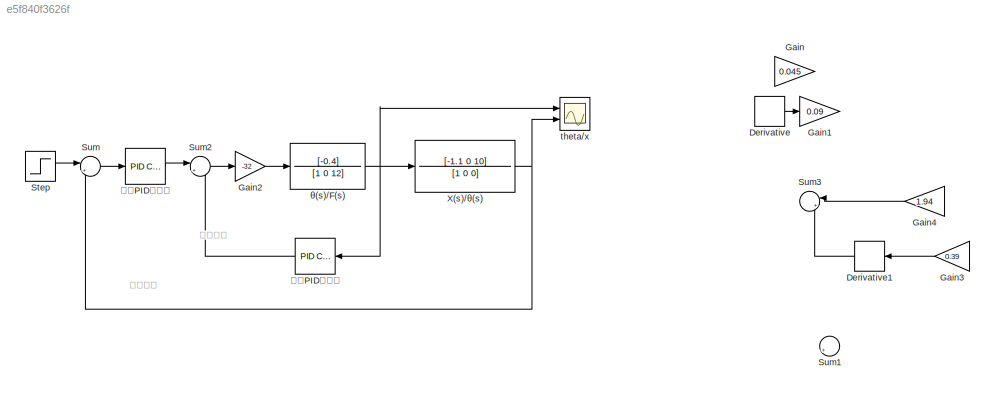
MODEL slx_e5f840f3626f
KIND model
CONFIG AbsTol = auto
CONFIG EnableMultiTasking = off
CONFIG FixedStep = auto
CONFIG MaxStep = auto
CONFIG MinStep = auto
CONFIG RelTol = 1e-3
CONFIG SampleTimeConstraint = Unconstrained
CONFIG SolverName = VariableStepAuto
CONFIG StartTime = 0.0
CONFIG StopTime = 100
BLOCK [Derivative] Derivative
  Commented = on
BLOCK [Derivative] Derivative1
  Commented = on
BLOCK [Gain] Gain
  Commented = on
  Gain = 0.045
BLOCK [Gain] Gain1
  Commented = on
  Gain = 0.09
BLOCK [Gain] Gain2
  Gain = -32
BLOCK [Gain] Gain3
  Commented = on
  Gain = 0.39
BLOCK [Gain] Gain4
  Commented = on
  Gain = 1.94
BLOCK [Step] Step
  SampleTime = 0
BLOCK [Sum] Sum
  Inputs = |+-
  Ports = [2, 1]
BLOCK [Sum] Sum1
  Commented = on
  Inputs = |++
  Ports = [2, 1]
BLOCK [Sum] Sum2
  Inputs = |+-
  Ports = [2, 1]
BLOCK [Sum] Sum3
  Commented = on
  Inputs = |++
  NameLocation = top
  Ports = [2, 1]
BLOCK [TransferFcn] X(s)//θ(s)
  Denominator = [1 0 0]
  Numerator = [-1.1 0 10]
BLOCK [Scope] theta//x
  Floating = off
  NumInputPorts = 2
  Ports = [2]
  ScopeSpecificationString = Simulink.scopes.TimeScopeBlockCfg('CurrentConfiguration', extmgr.ConfigurationSet(extmgr.Configuration('Core','General UI',true),extmgr.Configuration('Core','Source UI',true),extmgr.Configuration('Sources','WiredSimulink',true,'DataLoggingVariableName','ScopeData1'),extmgr.Configuration('Visuals','Time Domain',true,'SerializedDisplays',{struct('MinYLimReal','-0.32899','MaxYLimReal','1.58705','YLab...<+1431ch>
BLOCK [TransferFcn] θ(s)//F(s)
  Denominator = [1 0 12]
  Numerator = [-0.4]
BLOCK [Reference] 内环PID控制器  REF=slpidlib/PID Controller
  Ports = [1, 1]
  SourceBlock = slpidlib/PID Controller
  SourceProductBaseCode = SL
  SourceType = PID 1dof
BLOCK [Reference] 外环PID控制器   REF=slpidlib/PID Controller
  Ports = [1, 1]
  SourceBlock = slpidlib/PID Controller
  SourceProductBaseCode = SL
  SourceType = PID 1dof
ANNOTATION (root): 位置反馈
ANNOTATION (root): 角度反馈
LINE Derivative1:1 -> Sum3:2
LINE Derivative:1 -> Gain1:1
LINE Gain2:1 -> θ(s)//F(s):1
LINE Gain3:1 -> Derivative1:1
LINE Gain4:1 -> Sum3:1
LINE Step:1 -> Sum:1
LINE Sum2:1 -> Gain2:1
LINE Sum:1 -> 外环PID控制器 :1
NET X(s)//θ(s):1 -> Sum:2, theta//x:2
NET θ(s)//F(s):1 -> X(s)//θ(s):1, theta//x:1, 内环PID控制器:1
LINE 内环PID控制器:1 -> Sum2:2
LINE 外环PID控制器 :1 -> Sum2:1
note: NET lines group one-source signal fan-out (src -> all destinations, sorted); 1:1 wires keep LINE
